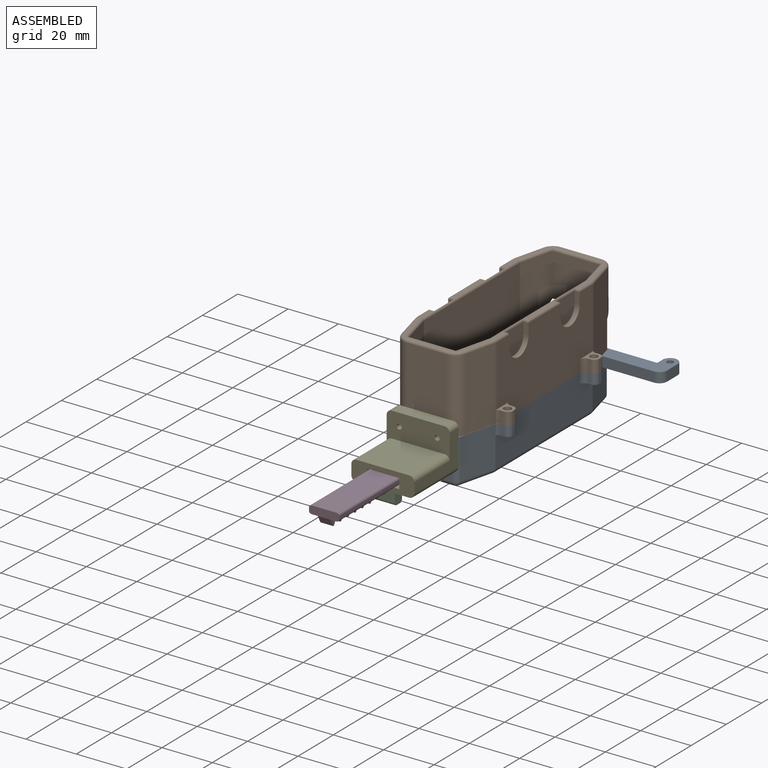
[diagram: assembled view]
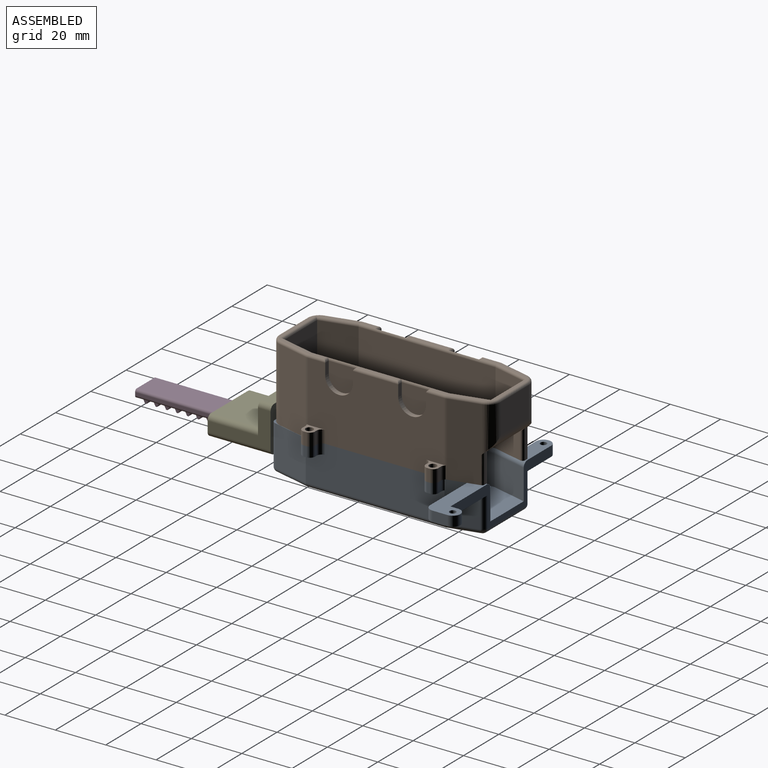
[diagram: assembled view, second angle]
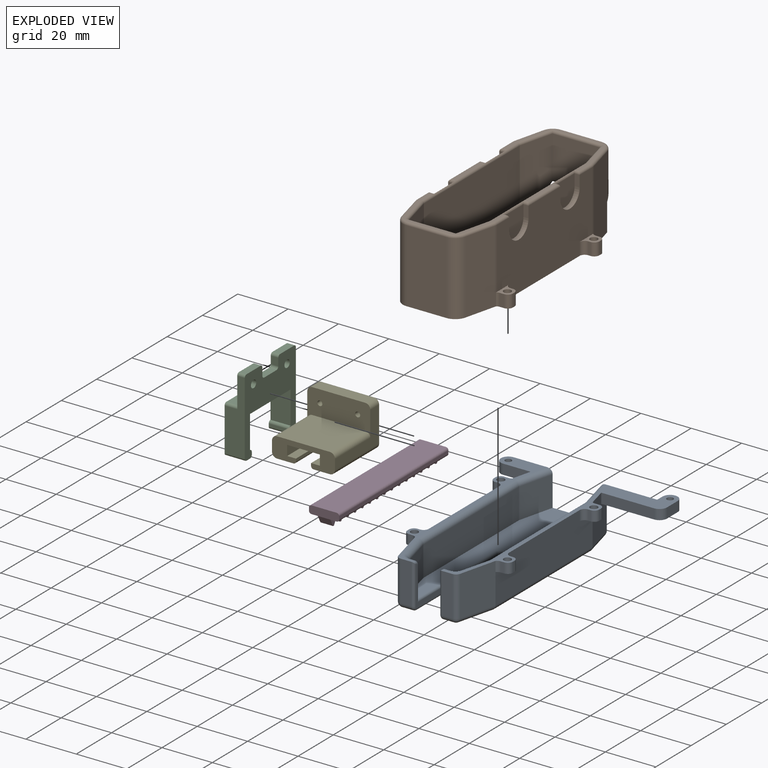
[diagram: exploded view]
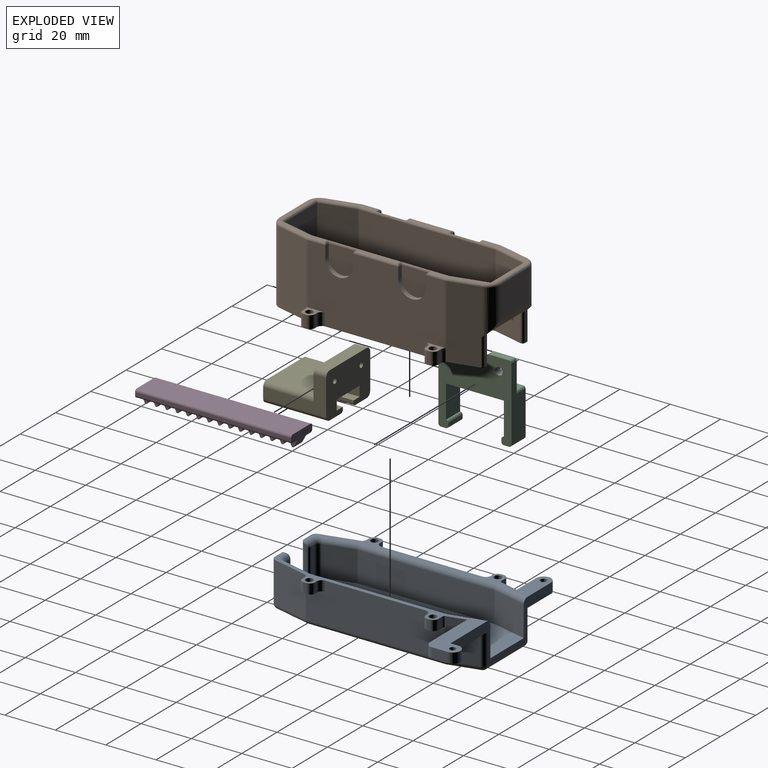
[diagram: exploded view, second angle]
ASSEMBLY  parts=5 mates=3
PART A: 130 faces, bbox 66x91.9x18.3 mm
  f0: plane 16x4.33mm, normal (0,-1,0), area 69.2mm2, adj f1,f5,f89,f128
  f1: plane 91x32.04mm, normal (0,0,1), area 300.7mm2, adj f0,f4,f7,f8,f12,f13,f16,f17
  f2: plane 12x1.98mm, normal (0,1,0), area 23.8mm2, adj f3,f4,f60,f125
  f3: plane 82x25.91mm, normal (0,0,1), area 1475.5mm2, adj f2,f8,f47,f48,f49,f50,f51,f52
  f4: cylinder r=2mm len=2mm, axis (-1,0,0), area 6.2mm2, adj f1,f2,f62,f127
  f5: cylinder r=2mm len=4.33mm, axis (-1,0,0), area 13.6mm2, adj f0,f14,f90,f126
  f6: plane 55.1x16mm, normal (-1,0,0), area 821.2mm2, adj f9,f10,f15,f31,f36,f75,f88,f99
  f7: plane 16x12.12mm, normal (0.97,0.24,0), area 181.3mm2, adj f1,f13,f16,f22,f84,f97,f98
  f8: plane 57x16mm, normal (0,1,0), area 225.1mm2, adj f1,f3,f15,f20,f22,f23,f26,f47
  f9: plane 16x12.12mm, normal (-0.97,0.24,0), area 181.3mm2, adj f6,f15,f24,f26,f87,f101,f104
  f10: plane 16x14.76mm, normal (-0.97,-0.24,0), area 243.4mm2, adj f6,f15,f76,f91,f96
  f11: plane 16x4.33mm, normal (0,-1,0), area 69.2mm2, adj f15,f91,f92,f110
  f12: plane 16x14.76mm, normal (0.97,-0.24,0), area 243.4mm2, adj f1,f13,f80,f89,f93
  f13: plane 55.1x16mm, normal (1,0,0), area 821.2mm2, adj f1,f7,f12,f41,f46,f77,f83,f95
  f14: plane 81x27.91mm, normal (0,0,-1), area 1608.1mm2, adj f5,f92,f93,f95,f96,f97,f99,f101
  f15: plane 85x21.96mm, normal (0,0,1), area 206.1mm2, adj f6,f8,f9,f10,f11,f23,f24,f25
  f16: plane 21x4mm, normal (0,-1,0), area 84mm2, adj f1,f7,f17,f22
  f17: cylinder r=3mm len=4mm, axis (0,0,1), area 18.8mm2, adj f1,f16,f18,f22
  f18: plane 6x4mm, normal (1,0,0), area 24mm2, adj f1,f17,f19,f22
  f19: cylinder r=3mm len=6mm, axis (0,0,1), area 37.7mm2, adj f1,f18,f20,f22
  f20: plane 4x3mm, normal (-1,0,0), area 12mm2, adj f1,f8,f19,f22
  f21: cylinder r=1.25mm len=4mm, axis (0,0,1), area 31.4mm2, adj f1,f22
  f22: plane 27.06x12mm, normal (0,0,-1), area 174.2mm2, adj f7,f8,f16,f17,f18,f19,f20,f21
  f23: cylinder r=3mm len=6mm, axis (0,0,1), area 37.7mm2, adj f8,f15,f24,f26
  f24: plane 10.91x4mm, normal (0,-1,0), area 43.6mm2, adj f9,f15,f23,f26
  f25: cylinder r=1.25mm len=4mm, axis (0,0,1), area 31.4mm2, adj f15,f26
  f26: plane 16.97x6mm, normal (0,0,-1), area 79.6mm2, adj f8,f9,f23,f24,f25,f104
  f27: plane 4x1mm, normal (0,-1,0), area 4mm2, adj f15,f31,f85,f88
  f28: plane 4x1.84mm, normal (0,1,0), area 7.4mm2, adj f15,f31,f86,f87
  f29: cylinder r=1.5mm len=4mm, axis (0,0,1), area 37.7mm2, adj f15,f31
  f30: plane 4x1mm, normal (-1,0,0), area 4mm2, adj f15,f31,f85,f86
  f31: plane 7.37x5mm, normal (0,0,-1), area 17.2mm2, adj f6,f27,f28,f29,f30,f85,f86,f87
  f32: plane 4x1.46mm, normal (0,-1,0), area 5.8mm2, adj f15,f36,f73,f76
  f33: plane 4x1mm, normal (0,1,0), area 4mm2, adj f15,f36,f74,f75
  f34: cylinder r=1.5mm len=4mm, axis (0,0,1), area 37.7mm2, adj f15,f36
  f35: plane 4x1mm, normal (-1,0,0), area 4mm2, adj f15,f36,f73,f74
  f36: plane 7.73x5mm, normal (0,0,-1), area 17.4mm2, adj f6,f32,f33,f34,f35,f73,f74,f75
  f37: plane 4x1.84mm, normal (0,1,0), area 7.4mm2, adj f1,f41,f81,f84
  f38: plane 4x1mm, normal (0,-1,0), area 4mm2, adj f1,f41,f82,f83
  f39: plane 4x1mm, normal (1,0,0), area 4mm2, adj f1,f41,f81,f82
  f40: cylinder r=1.5mm len=4mm, axis (0,0,1), area 37.7mm2, adj f1,f41
  f41: plane 7.37x5mm, normal (0,0,-1), area 17.2mm2, adj f13,f37,f38,f39,f40,f81,f82,f83
  f42: plane 4x1.46mm, normal (0,-1,0), area 5.8mm2, adj f1,f46,f79,f80
  f43: plane 4x1mm, normal (1,0,0), area 4mm2, adj f1,f46,f78,f79
  f44: cylinder r=1.5mm len=4mm, axis (0,0,1), area 37.7mm2, adj f1,f46
  f45: plane 4x1mm, normal (0,1,0), area 4mm2, adj f1,f46,f77,f78
  f46: plane 7.73x5mm, normal (0,0,-1), area 17.4mm2, adj f13,f42,f43,f44,f45,f77,f78,f79
  f47: plane 13.76x12mm, normal (0.97,-0.24,0), area 170.2mm2, adj f3,f8,f70,f72
  f48: plane 53.87x12mm, normal (1,0,0), area 646.4mm2, adj f3,f66,f69,f72
  f49: plane 12x11.89mm, normal (0.97,0.24,0), area 147mm2, adj f3,f63,f66,f67
  f50: plane 12x1.98mm, normal (0,1,0), area 23.8mm2, adj f3,f63,f64,f111
  f51: plane 12x11.89mm, normal (-0.97,0.24,0), area 147mm2, adj f3,f57,f60,f61
  f52: plane 53.87x12mm, normal (-1,0,0), area 646.4mm2, adj f3,f54,f57,f58
  f53: plane 13.76x12mm, normal (-0.97,-0.24,0), area 170.2mm2, adj f3,f8,f54,f55
  f54: cylinder r=2mm len=12mm, axis (0,0,1), area 5.9mm2, adj f3,f52,f53,f56
  f55: cylinder r=2mm len=14.25mm, axis (0.24,-0.97,0), area 44mm2, adj f1,f8,f53,f56
  f56: torus R=4mm, axis (0,0,1), area 2.1mm2, adj f1,f54,f55,f58
  f57: cylinder r=2mm len=12mm, axis (0,0,-1), area 5.9mm2, adj f3,f51,f52,f59
  f58: cylinder r=2mm len=53.87mm, axis (0,-1,0), area 169.2mm2, adj f1,f52,f56,f59
  f59: torus R=4mm, axis (0,0,1), area 2.1mm2, adj f1,f57,f58,f61
  f60: cylinder r=2mm len=12mm, axis (0,0,-1), area 31.8mm2, adj f2,f3,f51,f62
  f61: cylinder r=2mm len=12.37mm, axis (-0.24,-0.97,0), area 38.5mm2, adj f1,f51,f59,f62
  f62: torus R=4mm, axis (0,0,1), area 11.4mm2, adj f1,f4,f60,f61
  f63: cylinder r=2mm len=12mm, axis (0,0,1), area 31.8mm2, adj f3,f49,f50,f65
  f64: cylinder r=2mm len=2mm, axis (-1,0,0), area 6.2mm2, adj f15,f50,f65,f109
  f65: torus R=4mm, axis (0,0,1), area 11.4mm2, adj f15,f63,f64,f67
  f66: cylinder r=2mm len=12mm, axis (0,0,1), area 5.9mm2, adj f3,f48,f49,f68
  f67: cylinder r=2mm len=12.37mm, axis (-0.24,0.97,0), area 38.5mm2, adj f15,f49,f65,f68
  f68: torus R=4mm, axis (0,0,1), area 2.1mm2, adj f15,f66,f67,f69
  f69: cylinder r=2mm len=53.87mm, axis (0,1,0), area 169.2mm2, adj f15,f48,f68,f71
  f70: cylinder r=2mm len=14.25mm, axis (0.24,0.97,0), area 44mm2, adj f8,f15,f47,f71
  f71: torus R=4mm, axis (0,0,1), area 2.1mm2, adj f15,f69,f70,f72
  f72: cylinder r=2mm len=12mm, axis (0,0,-1), area 5.9mm2, adj f3,f47,f48,f71
  f73: cylinder r=2mm len=4mm, axis (0,0,1), area 12.6mm2, adj f15,f32,f35,f36
  f74: cylinder r=2mm len=4mm, axis (0,0,-1), area 12.6mm2, adj f15,f33,f35,f36
  f75: cylinder r=2mm len=4mm, axis (0,0,1), area 12.6mm2, adj f6,f15,f33,f36
  f76: cylinder r=2mm len=4mm, axis (0,0,1), area 7mm2, adj f10,f15,f32,f36
  f77: cylinder r=2mm len=4mm, axis (0,0,1), area 12.6mm2, adj f1,f13,f45,f46
  f78: cylinder r=2mm len=4mm, axis (0,0,-1), area 12.6mm2, adj f1,f43,f45,f46
  f79: cylinder r=2mm len=4mm, axis (0,0,1), area 12.6mm2, adj f1,f42,f43,f46
  f80: cylinder r=2mm len=4mm, axis (0,0,1), area 7mm2, adj f1,f12,f42,f46
  f81: cylinder r=2mm len=4mm, axis (0,0,1), area 12.6mm2, adj f1,f37,f39,f41
  f82: cylinder r=2mm len=4mm, axis (0,0,-1), area 12.6mm2, adj f1,f38,f39,f41
  f83: cylinder r=2mm len=4mm, axis (0,0,-1), area 12.6mm2, adj f1,f13,f38,f41
  f84: cylinder r=2mm len=4mm, axis (0,0,-1), area 4.9mm2, adj f1,f7,f37,f41
  f85: cylinder r=2mm len=4mm, axis (0,0,-1), area 12.6mm2, adj f15,f27,f30,f31
  f86: cylinder r=2mm len=4mm, axis (0,0,1), area 12.6mm2, adj f15,f28,f30,f31
  f87: cylinder r=2mm len=4mm, axis (0,0,1), area 4.9mm2, adj f9,f15,f28,f31
  f88: cylinder r=2mm len=4mm, axis (0,0,-1), area 12.6mm2, adj f6,f15,f27,f31
  f89: cylinder r=2mm len=16mm, axis (0,0,-1), area 42.4mm2, adj f0,f1,f12,f90
  f90: sphere r=2mm, area 5.3mm2, adj f5,f89,f93
  f91: cylinder r=2mm len=16mm, axis (0,0,-1), area 42.4mm2, adj f10,f11,f15,f94
  f92: cylinder r=2mm len=4.33mm, axis (-1,0,0), area 13.6mm2, adj f11,f14,f94,f112
  f93: cylinder r=2mm len=15.24mm, axis (-0.24,-0.97,0), area 47.5mm2, adj f12,f14,f90,f95
  f94: sphere r=2mm, area 5.3mm2, adj f91,f92,f96
  f95: cylinder r=2mm len=55.1mm, axis (0,-1,0), area 172.5mm2, adj f13,f14,f93,f97
  f96: cylinder r=2mm len=15.24mm, axis (-0.24,0.97,0), area 47.5mm2, adj f10,f14,f94,f99
  f97: cylinder r=2mm len=12.6mm, axis (0.24,-0.97,0), area 39mm2, adj f7,f14,f95,f100
  f98: cylinder r=2mm len=12mm, axis (0,0,1), area 31.8mm2, adj f7,f8,f22,f100
  f99: cylinder r=2mm len=55.1mm, axis (0,1,0), area 172.5mm2, adj f6,f14,f96,f101
  f100: sphere r=2mm, area 5.3mm2, adj f97,f98,f102
  f101: cylinder r=2mm len=12.6mm, axis (0.24,0.97,0), area 39mm2, adj f9,f14,f99,f103
  f102: cylinder r=2mm len=21.97mm, axis (1,0,0), area 69mm2, adj f8,f14,f100,f103
  f103: sphere r=2mm, area 5.3mm2, adj f101,f102,f104
  f104: cylinder r=2mm len=12mm, axis (0,0,-1), area 31.8mm2, adj f8,f9,f26,f103
  f105: plane 46.2x16mm, normal (-1,0,0), area 106mm2, adj f120,f123,f124,f125,f126,f127,f128
  f106: plane 46.2x16mm, normal (1,0,0), area 106mm2, adj f109,f110,f111,f112,f113,f114,f115
  f107: plane 8x2mm, normal (0,-1,0), area 16mm2, adj f115,f118,f119,f120
  f108: cylinder r=1mm len=1mm, axis (0,1,0), area 1mm2, adj f15,f109,f110
  f109: torus R=1mm, axis (-1,0,0), area 4mm2, adj f64,f106,f108,f111
  f110: cylinder r=1mm len=16mm, axis (0,0,1), area 24.6mm2, adj f11,f106,f108,f112
  f111: cylinder r=1mm len=13mm, axis (0,0,-1), area 19.4mm2, adj f50,f106,f109,f113
  f112: torus R=1mm, axis (-1,0,0), area 4mm2, adj f92,f106,f110,f114
  f113: cylinder r=1mm len=45.2mm, axis (0,1,0), area 70mm2, adj f3,f106,f111,f116
  f114: cylinder r=1mm len=45.2mm, axis (0,1,0), area 71mm2, adj f14,f106,f112,f117
  f115: cylinder r=1mm len=2mm, axis (0,0,1), area 3.1mm2, adj f106,f107,f116,f117
  f116: torus R=2mm, axis (0,0,1), area 3.4mm2, adj f3,f113,f115,f118
  f117: torus R=2mm, axis (0,0,1), area 3.4mm2, adj f14,f114,f115,f119
  f118: cylinder r=1mm len=8mm, axis (1,0,0), area 12.6mm2, adj f3,f107,f116,f121
  f119: cylinder r=1mm len=8mm, axis (1,0,0), area 12.6mm2, adj f14,f107,f117,f122
  f120: cylinder r=1mm len=2mm, axis (0,0,-1), area 3.1mm2, adj f105,f107,f121,f122
  f121: torus R=2mm, axis (0,0,1), area 3.4mm2, adj f3,f118,f120,f123
  f122: torus R=2mm, axis (0,0,1), area 3.4mm2, adj f14,f119,f120,f124
  f123: cylinder r=1mm len=45.2mm, axis (0,-1,0), area 70mm2, adj f3,f105,f121,f125
  f124: cylinder r=1mm len=45.2mm, axis (0,-1,0), area 71mm2, adj f14,f105,f122,f126
  f125: cylinder r=1mm len=13mm, axis (0,0,1), area 19.4mm2, adj f2,f105,f123,f127
  f126: torus R=1mm, axis (-1,0,0), area 4mm2, adj f5,f105,f124,f128
  f127: torus R=1mm, axis (-1,0,0), area 4mm2, adj f4,f105,f125,f129
  f128: cylinder r=1mm len=16mm, axis (0,0,-1), area 24.6mm2, adj f0,f105,f126,f129
  f129: cylinder r=1mm len=1mm, axis (0,-1,0), area 1mm2, adj f1,f127,f128
PART B: 129 faces, bbox 41.9x88.8x30 mm
  f0: plane 16x1mm, normal (0,0,1), area 16mm2, adj f92,f96,f97,f101
  f1: plane 16x1mm, normal (0,0,1), area 16mm2, adj f107,f112,f113,f120
  f2: plane 29.91x22mm, normal (0,0,1), area 61.4mm2, adj f87,f88,f89,f90,f91,f93,f94,f100
  f3: plane 29.91x22mm, normal (0,0,1), area 61.6mm2, adj f99,f101,f102,f105,f106,f110,f111,f117
  f4: plane 53.87x29mm, normal (1,0,0), area 1298.7mm2, adj f11,f35,f40,f45,f49,f67,f68,f69
  f5: plane 53.87x29mm, normal (-1,0,0), area 1298.7mm2, adj f11,f25,f30,f43,f56,f59,f60,f61
  f6: plane 19.09x17mm, normal (0,1,0), area 324.5mm2, adj f7,f10,f75,f110
  f7: plane 29x13.64mm, normal (0.97,0.24,0), area 387.8mm2, adj f6,f11,f12,f75,f117,f127
  f8: plane 29x12.49mm, normal (-0.97,-0.24,0), area 353.1mm2, adj f11,f30,f44,f75,f76,f79,f86,f125
  f9: plane 29x12.49mm, normal (0.97,-0.24,0), area 353.1mm2, adj f11,f40,f48,f75,f77,f80,f85,f111
  f10: plane 29x13.64mm, normal (-0.97,0.24,0), area 387.8mm2, adj f6,f11,f16,f75,f105,f128
  f11: plane 84.5x41.91mm, normal (0,0,-1), area 629.4mm2, adj f4,f5,f7,f8,f9,f10,f12,f13
  f12: plane 54.36x29mm, normal (1,0,0), area 1576.4mm2, adj f7,f11,f13,f120
  f13: plane 29x14mm, normal (0.97,-0.24,0), area 418.5mm2, adj f11,f12,f14,f116
  f14: plane 29x18.91mm, normal (0,-1,0), area 548.4mm2, adj f11,f13,f15,f109
  f15: plane 29x14mm, normal (-0.97,-0.24,0), area 418.5mm2, adj f11,f14,f16,f104
  f16: plane 54.36x29mm, normal (-1,0,0), area 1576.4mm2, adj f10,f11,f15,f101
  f17: plane 15.97x11.93mm, normal (0,-1,0), area 190.5mm2, adj f76,f77,f78,f121
  f18: plane 29x12.84mm, normal (0.97,0.24,0), area 369.1mm2, adj f11,f35,f52,f81,f82,f87
  f19: plane 29x15.79mm, normal (0,1,0), area 457.8mm2, adj f11,f82,f83,f90
  f20: plane 29x12.84mm, normal (-0.97,0.24,0), area 369.1mm2, adj f11,f25,f55,f83,f84,f100
  f21: plane 5x1mm, normal (0,-1,0), area 5mm2, adj f11,f25,f53,f56
  f22: plane 5x1.84mm, normal (0,1,0), area 9.2mm2, adj f11,f25,f54,f55
  f23: cylinder r=1.5mm len=5mm, axis (0,0,-1), area 47.1mm2, adj f11,f25
  f24: plane 5x1mm, normal (-1,0,0), area 5mm2, adj f11,f25,f53,f54
  f25: plane 7.97x5.15mm, normal (0,0,1), area 17.2mm2, adj f5,f20,f21,f22,f23,f24,f53,f54
  f26: plane 5x1.46mm, normal (0,-1,0), area 7.3mm2, adj f11,f30,f41,f44
  f27: plane 5x1mm, normal (0,1,0), area 5mm2, adj f11,f30,f42,f43
  f28: cylinder r=1.5mm len=5mm, axis (0,0,-1), area 47.1mm2, adj f11,f30
  f29: plane 5x1mm, normal (-1,0,0), area 5mm2, adj f11,f30,f41,f42
  f30: plane 8.32x5.15mm, normal (0,0,1), area 17.4mm2, adj f5,f8,f26,f27,f28,f29,f41,f42
  f31: plane 5x1mm, normal (0,-1,0), area 5mm2, adj f11,f35,f49,f50
  f32: plane 5x1mm, normal (1,0,0), area 5mm2, adj f11,f35,f50,f51
  f33: plane 5x1.84mm, normal (0,1,0), area 9.2mm2, adj f11,f35,f51,f52
  f34: cylinder r=1.5mm len=5mm, axis (0,0,-1), area 47.1mm2, adj f11,f35
  f35: plane 7.97x5.15mm, normal (0,0,1), area 17.2mm2, adj f4,f18,f31,f32,f33,f34,f49,f50
  f36: plane 5x1.46mm, normal (0,-1,0), area 7.3mm2, adj f11,f40,f47,f48
  f37: plane 5x1mm, normal (1,0,0), area 5mm2, adj f11,f40,f46,f47
  f38: plane 5x1mm, normal (0,1,0), area 5mm2, adj f11,f40,f45,f46
  f39: cylinder r=1.5mm len=5mm, axis (0,0,-1), area 47.1mm2, adj f11,f40
  f40: plane 8.32x5.15mm, normal (0,0,1), area 17.4mm2, adj f4,f9,f36,f37,f38,f39,f45,f46
  f41: cylinder r=2mm len=5mm, axis (0,0,-1), area 15.7mm2, adj f11,f26,f29,f30
  f42: cylinder r=2mm len=5mm, axis (0,0,1), area 15.7mm2, adj f11,f27,f29,f30
  f43: cylinder r=2mm len=5mm, axis (0,0,-1), area 15.7mm2, adj f5,f11,f27,f30
  f44: cylinder r=2mm len=5mm, axis (0,0,1), area 8.8mm2, adj f8,f11,f26,f30
  f45: cylinder r=2mm len=5mm, axis (0,0,-1), area 15.7mm2, adj f4,f11,f38,f40
  f46: cylinder r=2mm len=5mm, axis (0,0,1), area 15.7mm2, adj f11,f37,f38,f40
  f47: cylinder r=2mm len=5mm, axis (0,0,-1), area 15.7mm2, adj f11,f36,f37,f40
  f48: cylinder r=2mm len=5mm, axis (0,0,1), area 8.8mm2, adj f9,f11,f36,f40
  f49: cylinder r=2mm len=5mm, axis (0,0,1), area 15.7mm2, adj f4,f11,f31,f35
  f50: cylinder r=2mm len=5mm, axis (0,0,1), area 15.7mm2, adj f11,f31,f32,f35
  f51: cylinder r=2mm len=5mm, axis (0,0,-1), area 15.7mm2, adj f11,f32,f33,f35
  f52: cylinder r=2mm len=5mm, axis (0,0,-1), area 6.2mm2, adj f11,f18,f33,f35
  f53: cylinder r=2mm len=5mm, axis (0,0,1), area 15.7mm2, adj f11,f21,f24,f25
  f54: cylinder r=2mm len=5mm, axis (0,0,-1), area 15.7mm2, adj f11,f22,f24,f25
  f55: cylinder r=2mm len=5mm, axis (0,0,-1), area 6.2mm2, adj f11,f20,f22,f25
  f56: cylinder r=2mm len=5mm, axis (0,0,1), area 15.7mm2, adj f5,f11,f21,f25
  f57: plane 11.5x1.03mm, normal (0,-1,0), area 11.9mm2, adj f11,f75,f86,f127
  f58: plane 11.5x1.03mm, normal (0,-1,0), area 11.9mm2, adj f11,f75,f85,f128
  f59: plane 4.5x2mm, normal (0,1,0), area 9mm2, adj f5,f61,f62,f122
  f60: plane 4.5x2mm, normal (0,-1,0), area 9mm2, adj f5,f61,f62,f112
  f61: cylinder r=5.5mm len=11mm, axis (-1,0,0), area 34.6mm2, adj f5,f59,f60,f62
  f62: plane 11x10mm, normal (-1,0,0), area 97mm2, adj f59,f60,f61,f119
  f63: plane 4.5x2mm, normal (0,-1,0), area 9mm2, adj f5,f64,f66,f115
  f64: cylinder r=5.5mm len=11mm, axis (-1,0,0), area 34.6mm2, adj f5,f63,f65,f66
  f65: plane 4.5x2mm, normal (0,1,0), area 9mm2, adj f5,f64,f66,f113
  f66: plane 11x10mm, normal (-1,0,0), area 97mm2, adj f63,f64,f65,f114
  f67: plane 4.5x2mm, normal (0,-1,0), area 9mm2, adj f4,f69,f70,f94
  f68: plane 4.5x2mm, normal (0,1,0), area 9mm2, adj f4,f69,f70,f96
  f69: cylinder r=5.5mm len=11mm, axis (1,0,0), area 34.6mm2, adj f4,f67,f68,f70
  f70: plane 11x10mm, normal (1,0,0), area 97mm2, adj f67,f68,f69,f95
  f71: plane 4.5x2mm, normal (0,1,0), area 9mm2, adj f4,f72,f74,f99
  f72: cylinder r=5.5mm len=11mm, axis (1,0,0), area 34.6mm2, adj f4,f71,f73,f74
  f73: plane 4.5x2mm, normal (0,-1,0), area 9mm2, adj f4,f72,f74,f97
  f74: plane 11x10mm, normal (1,0,0), area 97mm2, adj f71,f72,f73,f98
  f75: plane 25.9x3.28mm, normal (0,-0.71,-0.71), area 58.3mm2, adj f6,f7,f8,f9,f10,f57,f58,f76
  f76: cylinder r=5mm len=17.79mm, axis (0,0,1), area 98.9mm2, adj f8,f17,f75,f78,f123
  f77: cylinder r=5mm len=17.79mm, axis (0,0,1), area 98.9mm2, adj f9,f17,f75,f78,f118
  f78: cylinder r=5mm len=23.04mm, axis (-1,0,0), area 77.3mm2, adj f17,f75,f76,f77
  f79: cylinder r=5mm len=24mm, axis (0,0,-1), area 29.4mm2, adj f5,f8,f30,f126
  f80: cylinder r=5mm len=24mm, axis (0,0,1), area 29.4mm2, adj f4,f9,f40,f106
  f81: cylinder r=5mm len=24mm, axis (0,0,1), area 29.4mm2, adj f4,f18,f35,f89
  f82: cylinder r=5mm len=29mm, axis (0,0,-1), area 192.2mm2, adj f11,f18,f19,f88
  f83: cylinder r=5mm len=29mm, axis (0,0,-1), area 192.2mm2, adj f11,f19,f20,f93
  f84: cylinder r=5mm len=24mm, axis (0,0,-1), area 29.4mm2, adj f5,f20,f25,f103
  f85: cylinder r=1mm len=11.5mm, axis (0,0,1), area 14.9mm2, adj f9,f11,f58,f75
  f86: cylinder r=1mm len=11.5mm, axis (0,0,-1), area 14.9mm2, adj f8,f11,f57,f75
  f87: cylinder r=1mm len=12.49mm, axis (0.24,-0.97,0), area 19.8mm2, adj f2,f18,f88,f89
  f88: torus R=4mm, axis (0,0,1), area 9.7mm2, adj f2,f82,f87,f90
  f89: torus R=4mm, axis (0,0,1), area 1.8mm2, adj f2,f81,f87,f91
  f90: cylinder r=1mm len=15.79mm, axis (1,0,0), area 24.8mm2, adj f2,f19,f88,f93
  f91: cylinder r=1mm len=6.75mm, axis (0,-1,0), area 10mm2, adj f2,f4,f89,f94
  f92: cylinder r=1mm len=18mm, axis (0,-1,0), area 27.1mm2, adj f0,f4,f96,f97
  f93: torus R=4mm, axis (0,0,1), area 9.7mm2, adj f2,f83,f90,f100
  f94: cylinder r=1mm len=2.5mm, axis (1,0,0), area 2.9mm2, adj f2,f67,f91,f95,f101
  f95: cylinder r=1mm len=12mm, axis (0,1,0), area 11.9mm2, adj f70,f94,f96,f101
  f96: cylinder r=1mm len=2.5mm, axis (-1,0,0), area 2.9mm2, adj f0,f68,f92,f95,f101
  f97: cylinder r=1mm len=2.5mm, axis (1,0,0), area 2.9mm2, adj f0,f73,f92,f98,f101
  f98: cylinder r=1mm len=12mm, axis (0,1,0), area 11.9mm2, adj f74,f97,f99,f101
  f99: cylinder r=1mm len=2.5mm, axis (-1,0,0), area 2.9mm2, adj f3,f71,f98,f101,f102
  f100: cylinder r=1mm len=12.49mm, axis (0.24,0.97,0), area 19.8mm2, adj f2,f20,f93,f103
  f101: cylinder r=1mm len=54.6mm, axis (0,1,0), area 72.4mm2, adj f0,f2,f3,f16,f94,f95,f96,f97
  f102: cylinder r=1mm len=7.11mm, axis (0,-1,0), area 10.6mm2, adj f3,f4,f99,f106
  f103: torus R=4mm, axis (0,0,1), area 1.8mm2, adj f2,f84,f100,f108
  f104: cylinder r=1mm len=15.12mm, axis (-0.24,0.97,0), area 23.2mm2, adj f2,f15,f101,f109
  f105: cylinder r=1mm len=14.76mm, axis (0.24,0.97,0), area 22.6mm2, adj f3,f10,f101,f110
  f106: torus R=4mm, axis (0,0,1), area 1.8mm2, adj f3,f80,f102,f111
  f107: cylinder r=1mm len=18mm, axis (0,1,0), area 27.1mm2, adj f1,f5,f112,f113
  f108: cylinder r=1mm len=6.75mm, axis (0,1,0), area 10mm2, adj f2,f5,f103,f115
  f109: cylinder r=1mm len=20.47mm, axis (-1,0,0), area 30.6mm2, adj f2,f14,f104,f116
  f110: cylinder r=1mm len=20.65mm, axis (1,0,0), area 30.9mm2, adj f3,f6,f105,f117
  f111: cylinder r=1mm len=12.13mm, axis (-0.24,-0.97,0), area 19.2mm2, adj f3,f9,f106,f118
  f112: cylinder r=1mm len=2.5mm, axis (1,0,0), area 2.9mm2, adj f1,f60,f107,f119,f120
  f113: cylinder r=1mm len=2.5mm, axis (-1,0,0), area 2.9mm2, adj f1,f65,f107,f114,f120
  f114: cylinder r=1mm len=12mm, axis (0,1,0), area 11.9mm2, adj f66,f113,f115,f120
  f115: cylinder r=1mm len=2.5mm, axis (1,0,0), area 2.9mm2, adj f2,f63,f108,f114,f120
  f116: cylinder r=1mm len=15.12mm, axis (-0.24,-0.97,0), area 23.2mm2, adj f2,f13,f109,f120
  f117: cylinder r=1mm len=14.76mm, axis (0.24,-0.97,0), area 22.6mm2, adj f3,f7,f110,f120
  f118: torus R=4mm, axis (0,0,1), area 9.7mm2, adj f3,f77,f111,f121
  f119: cylinder r=1mm len=12mm, axis (0,1,0), area 11.9mm2, adj f62,f112,f120,f122
  f120: cylinder r=1mm len=54.6mm, axis (0,-1,0), area 72.4mm2, adj f1,f2,f3,f12,f112,f113,f114,f115
  f121: cylinder r=1mm len=15.97mm, axis (-1,0,0), area 25.1mm2, adj f3,f17,f118,f123
  f122: cylinder r=1mm len=2.5mm, axis (-1,0,0), area 2.9mm2, adj f3,f59,f119,f120,f124
  f123: torus R=4mm, axis (0,0,1), area 9.7mm2, adj f3,f76,f121,f125
  f124: cylinder r=1mm len=7.11mm, axis (0,1,0), area 10.6mm2, adj f3,f5,f122,f126
  f125: cylinder r=1mm len=12.13mm, axis (-0.24,0.97,0), area 19.2mm2, adj f3,f8,f123,f126
  f126: torus R=4mm, axis (0,0,1), area 1.8mm2, adj f3,f79,f124,f125
  f127: cylinder r=1mm len=11.5mm, axis (0,0,-1), area 20mm2, adj f7,f11,f57,f75
  f128: cylinder r=1mm len=11.5mm, axis (0,0,1), area 20mm2, adj f10,f11,f58,f75
PART C: 34 faces, bbox 31x29x8 mm
  f0: plane 27x5mm, normal (1,0,0), area 135mm2, adj f10,f19,f26,f33
  f1: plane 29x8mm, normal (0,1,0), area 172mm2, adj f10,f11,f19,f25,f26,f27
  f2: plane 8x2mm, normal (-1,0,0), area 16mm2, adj f10,f11,f27,f28
  f3: plane 8x1mm, normal (0,-1,0), area 8mm2, adj f10,f11,f28,f29
  f4: plane 13x8mm, normal (0,-1,0), area 104mm2, adj f5,f10,f11,f29
  f5: plane 23x8mm, normal (-1,0,0), area 184mm2, adj f4,f6,f10,f11
  f6: plane 13x8mm, normal (0,1,0), area 104mm2, adj f5,f10,f11,f30
  f7: plane 8x1mm, normal (0,1,0), area 8mm2, adj f10,f11,f30,f31
  f8: plane 8x2mm, normal (-1,0,0), area 16mm2, adj f10,f11,f31,f32
  f9: plane 29x8mm, normal (0,-1,0), area 172mm2, adj f10,f11,f19,f20,f32,f33
  f10: plane 29x19mm, normal (0,0,1), area 187.3mm2, adj f0,f1,f2,f3,f4,f5,f6,f7
  f11: plane 31x29mm, normal (0,0,-1), area 476.1mm2, adj f1,f2,f3,f4,f5,f6,f7,f8
  f12: plane 8x3mm, normal (1,0,0), area 24mm2, adj f11,f19,f20,f21
  f13: plane 3x3mm, normal (0,1,0), area 9mm2, adj f11,f19,f21,f22
  f14: plane 7x3mm, normal (1,0,0), area 21mm2, adj f11,f19,f22,f23
  f15: plane 3x3mm, normal (0,-1,0), area 9mm2, adj f11,f19,f23,f24
  f16: cylinder r=1.5mm len=3mm, axis (0,0,-1), area 28.3mm2, adj f11,f19
  f17: cylinder r=1.5mm len=3mm, axis (0,0,-1), area 28.3mm2, adj f11,f19
  f18: plane 8x3mm, normal (1,0,0), area 24mm2, adj f11,f19,f24,f25
  f19: plane 29x13mm, normal (0,0,1), area 288.9mm2, adj f0,f1,f9,f12,f13,f14,f15,f16
  f20: cylinder r=1mm len=3mm, axis (0,0,1), area 4.7mm2, adj f9,f11,f12,f19
  f21: cylinder r=1mm len=3mm, axis (0,0,1), area 4.7mm2, adj f11,f12,f13,f19
  f22: cylinder r=1mm len=3mm, axis (0,0,-1), area 4.7mm2, adj f11,f13,f14,f19
  f23: cylinder r=1mm len=3mm, axis (0,0,-1), area 4.7mm2, adj f11,f14,f15,f19
  f24: cylinder r=1mm len=3mm, axis (0,0,1), area 4.7mm2, adj f11,f15,f18,f19
  f25: cylinder r=1mm len=3mm, axis (0,0,-1), area 4.7mm2, adj f1,f11,f18,f19
  f26: cylinder r=1mm len=5mm, axis (0,0,-1), area 7.9mm2, adj f0,f1,f10,f19
  f27: cylinder r=1mm len=8mm, axis (0,0,1), area 12.6mm2, adj f1,f2,f10,f11
  f28: cylinder r=1mm len=8mm, axis (0,0,1), area 12.6mm2, adj f2,f3,f10,f11
  f29: cylinder r=1mm len=8mm, axis (0,0,-1), area 12.6mm2, adj f3,f4,f10,f11
  f30: cylinder r=1mm len=8mm, axis (0,0,1), area 12.6mm2, adj f6,f7,f10,f11
  f31: cylinder r=1mm len=8mm, axis (0,0,-1), area 12.6mm2, adj f7,f8,f10,f11
  f32: cylinder r=1mm len=8mm, axis (0,0,-1), area 12.6mm2, adj f8,f9,f10,f11
  f33: cylinder r=1mm len=5mm, axis (0,0,1), area 7.9mm2, adj f0,f9,f10,f19
PART D: 85 faces, bbox 61.9x6x12 mm
  f0: plane 3.61x2.86mm, normal (0,0,-1), area 6mm2, adj f14,f15,f16,f19
  f1: plane 3.61x2.86mm, normal (0,0,-1), area 6mm2, adj f19,f28,f29,f30
  f2: plane 3.61x2.86mm, normal (0,0,-1), area 6mm2, adj f19,f24,f25,f26
  f3: plane 3.61x2.86mm, normal (0,0,-1), area 6mm2, adj f19,f32,f33,f34
  f4: plane 3.61x2.86mm, normal (0,0,-1), area 6mm2, adj f19,f36,f37,f38
  f5: plane 3.61x2.86mm, normal (0,0,-1), area 6mm2, adj f19,f40,f41,f42
  f6: plane 3.61x2.86mm, normal (0,0,-1), area 6mm2, adj f19,f44,f45,f46
  f7: plane 3.61x2.86mm, normal (0,0,-1), area 6mm2, adj f19,f48,f49,f50
  f8: plane 3.61x2.86mm, normal (0,0,-1), area 6mm2, adj f19,f52,f53,f54
  f9: plane 3.61x2.86mm, normal (0,0,-1), area 6mm2, adj f19,f56,f57,f58
  f10: plane 3.61x2.86mm, normal (0,0,-1), area 6mm2, adj f19,f60,f61,f62
  f11: plane 3.61x2.86mm, normal (0,0,-1), area 6mm2, adj f19,f20,f21,f22
  f12: plane 3.61x2.86mm, normal (0,0,-1), area 6mm2, adj f19,f64,f65,f66
  f13: plane 3.61x2.86mm, normal (0,0,-1), area 6mm2, adj f19,f68,f69,f70
  f14: plane 5x2.86mm, normal (-0.88,-0.47,0), area 16.2mm2, adj f0,f15,f17,f78
  f15: plane 5x0.56mm, normal (0,-1,0), area 2.8mm2, adj f0,f14,f16,f17
  f16: plane 5x2.86mm, normal (0.88,-0.47,0), area 16.2mm2, adj f0,f15,f17,f19
  f17: plane 3.61x2.86mm, normal (0,0,1), area 6mm2, adj f14,f15,f16,f19
  f18: plane 3.61x2.86mm, normal (0,0,-1), area 6mm2, adj f19,f72,f73,f74
  f19: plane 61.91x10mm, normal (0,-1,0), area 348.7mm2, adj f0,f1,f2,f3,f4,f5,f6,f7
  f20: plane 5x2.86mm, normal (-0.88,-0.47,0), area 16.2mm2, adj f11,f19,f21,f23
  f21: plane 5x0.56mm, normal (0,-1,0), area 2.8mm2, adj f11,f20,f22,f23
  f22: plane 5x2.86mm, normal (0.88,-0.47,0), area 16.2mm2, adj f11,f19,f21,f23
  f23: plane 3.61x2.86mm, normal (0,0,1), area 6mm2, adj f19,f20,f21,f22
  f24: plane 5x2.86mm, normal (-0.88,-0.47,0), area 16.2mm2, adj f2,f19,f25,f27
  f25: plane 5x0.56mm, normal (0,-1,0), area 2.8mm2, adj f2,f24,f26,f27
  f26: plane 5x2.86mm, normal (0.88,-0.47,0), area 16.2mm2, adj f2,f19,f25,f27
  f27: plane 3.61x2.86mm, normal (0,0,1), area 6mm2, adj f19,f24,f25,f26
  f28: plane 5x2.86mm, normal (-0.88,-0.47,0), area 16.2mm2, adj f1,f19,f29,f31
  f29: plane 5x0.56mm, normal (0,-1,0), area 2.8mm2, adj f1,f28,f30,f31
  f30: plane 5x2.86mm, normal (0.88,-0.47,0), area 16.2mm2, adj f1,f19,f29,f31
  f31: plane 3.61x2.86mm, normal (0,0,1), area 6mm2, adj f19,f28,f29,f30
  f32: plane 5x2.86mm, normal (-0.88,-0.47,0), area 16.2mm2, adj f3,f19,f33,f35
  f33: plane 5x0.56mm, normal (0,-1,0), area 2.8mm2, adj f3,f32,f34,f35
  f34: plane 5x2.86mm, normal (0.88,-0.47,0), area 16.2mm2, adj f3,f19,f33,f35
  f35: plane 3.61x2.86mm, normal (0,0,1), area 6mm2, adj f19,f32,f33,f34
  f36: plane 5x2.86mm, normal (-0.88,-0.47,0), area 16.2mm2, adj f4,f19,f37,f39
  f37: plane 5x0.56mm, normal (0,-1,0), area 2.8mm2, adj f4,f36,f38,f39
  f38: plane 5x2.86mm, normal (0.88,-0.47,0), area 16.2mm2, adj f4,f19,f37,f39
  f39: plane 3.61x2.86mm, normal (0,0,1), area 6mm2, adj f19,f36,f37,f38
  f40: plane 5x2.86mm, normal (-0.88,-0.47,0), area 16.2mm2, adj f5,f19,f41,f43
  f41: plane 5x0.56mm, normal (0,-1,0), area 2.8mm2, adj f5,f40,f42,f43
  f42: plane 5x2.86mm, normal (0.88,-0.47,0), area 16.2mm2, adj f5,f19,f41,f43
  f43: plane 3.61x2.86mm, normal (0,0,1), area 6mm2, adj f19,f40,f41,f42
  f44: plane 5x2.86mm, normal (-0.88,-0.47,0), area 16.2mm2, adj f6,f19,f45,f47
  f45: plane 5x0.56mm, normal (0,-1,0), area 2.8mm2, adj f6,f44,f46,f47
  f46: plane 5x2.86mm, normal (0.88,-0.47,0), area 16.2mm2, adj f6,f19,f45,f47
  f47: plane 3.61x2.86mm, normal (0,0,1), area 6mm2, adj f19,f44,f45,f46
  f48: plane 5x2.86mm, normal (-0.88,-0.47,0), area 16.2mm2, adj f7,f19,f49,f51
  f49: plane 5x0.56mm, normal (0,-1,0), area 2.8mm2, adj f7,f48,f50,f51
  f50: plane 5x2.86mm, normal (0.88,-0.47,0), area 16.2mm2, adj f7,f19,f49,f51
  f51: plane 3.61x2.86mm, normal (0,0,1), area 6mm2, adj f19,f48,f49,f50
  f52: plane 5x2.86mm, normal (-0.88,-0.47,0), area 16.2mm2, adj f8,f19,f53,f55
  f53: plane 5x0.56mm, normal (0,-1,0), area 2.8mm2, adj f8,f52,f54,f55
  f54: plane 5x2.86mm, normal (0.88,-0.47,0), area 16.2mm2, adj f8,f19,f53,f55
  f55: plane 3.61x2.86mm, normal (0,0,1), area 6mm2, adj f19,f52,f53,f54
  f56: plane 5x2.86mm, normal (-0.88,-0.47,0), area 16.2mm2, adj f9,f19,f57,f59
  f57: plane 5x0.56mm, normal (0,-1,0), area 2.8mm2, adj f9,f56,f58,f59
  f58: plane 5x2.86mm, normal (0.88,-0.47,0), area 16.2mm2, adj f9,f19,f57,f59
  f59: plane 3.61x2.86mm, normal (0,0,1), area 6mm2, adj f19,f56,f57,f58
  f60: plane 5x2.86mm, normal (-0.88,-0.47,0), area 16.2mm2, adj f10,f19,f61,f63
  f61: plane 5x0.56mm, normal (0,-1,0), area 2.8mm2, adj f10,f60,f62,f63
  f62: plane 5x2.86mm, normal (0.88,-0.47,0), area 16.2mm2, adj f10,f19,f61,f63
  f63: plane 3.61x2.86mm, normal (0,0,1), area 6mm2, adj f19,f60,f61,f62
  f64: plane 5x2.86mm, normal (-0.88,-0.47,0), area 16.2mm2, adj f12,f19,f65,f67
  f65: plane 5x0.56mm, normal (0,-1,0), area 2.8mm2, adj f12,f64,f66,f67
  f66: plane 5x2.86mm, normal (0.88,-0.47,0), area 16.2mm2, adj f12,f19,f65,f67
  f67: plane 3.61x2.86mm, normal (0,0,1), area 6mm2, adj f19,f64,f65,f66
  f68: plane 5x2.86mm, normal (-0.88,-0.47,0), area 16.2mm2, adj f13,f19,f69,f71
  f69: plane 5x0.56mm, normal (0,-1,0), area 2.8mm2, adj f13,f68,f70,f71
  f70: plane 5x2.86mm, normal (0.88,-0.47,0), area 16.2mm2, adj f13,f19,f69,f71
  f71: plane 3.61x2.86mm, normal (0,0,1), area 6mm2, adj f19,f68,f69,f70
  f72: plane 5x0.56mm, normal (0,-1,0), area 2.8mm2, adj f18,f73,f74,f75
  f73: plane 5x2.86mm, normal (0.88,-0.47,0), area 16.2mm2, adj f18,f72,f75,f76
  f74: plane 5x2.86mm, normal (-0.88,-0.47,0), area 16.2mm2, adj f18,f19,f72,f75
  f75: plane 3.61x2.86mm, normal (0,0,1), area 6mm2, adj f19,f72,f73,f74
  f76: plane 12x3.14mm, normal (1,0,0), area 36.8mm2, adj f19,f73,f77,f79,f80,f81,f82,f83
  f77: plane 61.91x10mm, normal (0,1,0), area 619.1mm2, adj f76,f78,f81,f83
  f78: plane 12x3.14mm, normal (-1,0,0), area 36.8mm2, adj f14,f19,f77,f79,f80,f81,f82,f83
  f79: plane 61.91x1.14mm, normal (0,0,1), area 70.3mm2, adj f76,f78,f83,f84
  f80: plane 61.91x1.14mm, normal (0,0,-1), area 70.3mm2, adj f76,f78,f81,f82
  f81: cylinder r=1mm len=61.91mm, axis (-1,0,0), area 97.2mm2, adj f76,f77,f78,f80
  f82: cylinder r=1mm len=61.91mm, axis (1,0,0), area 97.2mm2, adj f19,f76,f78,f80
  f83: cylinder r=1mm len=61.91mm, axis (1,0,0), area 97.2mm2, adj f76,f77,f78,f79
  f84: cylinder r=1mm len=61.91mm, axis (-1,0,0), area 97.2mm2, adj f19,f76,f78,f79
PART E: 26 faces, bbox 25x18x25 mm
  f0: plane 21x20mm, normal (0,1,0), area 420mm2, adj f12,f19,f22,f25
  f1: plane 25x14mm, normal (-1,0,0), area 150mm2, adj f12,f13,f19,f21,f22,f23
  f2: plane 25x6.5mm, normal (0,-1,0), area 162.5mm2, adj f12,f13,f14,f23
  f3: plane 25x1mm, normal (1,0,0), area 25mm2, adj f4,f12,f13,f14
  f4: plane 25x3.5mm, normal (0,1,0), area 87.5mm2, adj f3,f5,f12,f13
  f5: plane 25x4mm, normal (1,0,0), area 100mm2, adj f4,f6,f12,f13
  f6: plane 25x13mm, normal (0,-1,0), area 325mm2, adj f5,f7,f12,f13
  f7: plane 25x4mm, normal (-1,0,0), area 100mm2, adj f6,f8,f12,f13
  f8: plane 25x3.5mm, normal (0,1,0), area 87.5mm2, adj f7,f9,f12,f13
  f9: plane 25x1mm, normal (-1,0,0), area 25mm2, adj f8,f12,f13,f15
  f10: plane 25x6.5mm, normal (0,-1,0), area 162.5mm2, adj f12,f13,f15,f24
  f11: plane 25x14mm, normal (1,0,0), area 150mm2, adj f12,f13,f19,f20,f24,f25
  f12: plane 25x8mm, normal (0,0,1), area 132.1mm2, adj f0,f1,f2,f3,f4,f5,f6,f7
  f13: plane 25x18mm, normal (0,0,-1), area 375.9mm2, adj f1,f2,f3,f4,f5,f6,f7,f8
  f14: cylinder r=1mm len=25mm, axis (0,0,-1), area 39.3mm2, adj f2,f3,f12,f13
  f15: cylinder r=1mm len=25mm, axis (0,0,1), area 39.3mm2, adj f9,f10,f12,f13
  f16: cylinder r=1mm len=5mm, axis (0,0,-1), area 31.4mm2, adj f13,f19
  f17: cylinder r=1mm len=5mm, axis (0,0,-1), area 31.4mm2, adj f13,f19
  f18: plane 21x5mm, normal (0,1,0), area 105mm2, adj f13,f19,f20,f21
  f19: plane 25x12mm, normal (0,0,1), area 243.7mm2, adj f0,f1,f11,f16,f17,f18,f20,f21
  f20: cylinder r=2mm len=5mm, axis (0,0,-1), area 15.7mm2, adj f11,f13,f18,f19
  f21: cylinder r=2mm len=5mm, axis (0,0,1), area 15.7mm2, adj f1,f13,f18,f19
  f22: cylinder r=2mm len=20mm, axis (0,0,1), area 62.8mm2, adj f0,f1,f12,f19
  f23: cylinder r=2mm len=25mm, axis (0,0,-1), area 78.5mm2, adj f1,f2,f12,f13
  f24: cylinder r=2mm len=25mm, axis (0,0,1), area 78.5mm2, adj f10,f11,f12,f13
  f25: cylinder r=2mm len=20mm, axis (0,0,-1), area 62.8mm2, adj f0,f11,f12,f19
PLACE A t=(72.76,8.63,18.82)mm
PLACE B rot(axis=(0,0,1),180deg) t=(-147.72,117.75,18.82)mm
PLACE C rot(axis=(0,-1,0),90deg) t=(39.89,93.85,218.35)mm
PLACE D rot(axis=(0.58,0.58,0.58),120deg) t=(53.51,173.46,90.49)mm
PLACE E rot(axis=(1,0,0),90deg) t=(212.1,27.37,61.93)mm
MATE fastened B.f34 <-> A.f34  axis (0,0,-1) through (37.39,46.87,18.82)mm
MATE fastened C.f16 <-> A.f6  axis (1,0,0) through (39.89,56.23,11.18)mm
MATE slider D.f78 <-> E.f12  axis (0,-1,0) through (56.01,-30.96,11.02)mm
